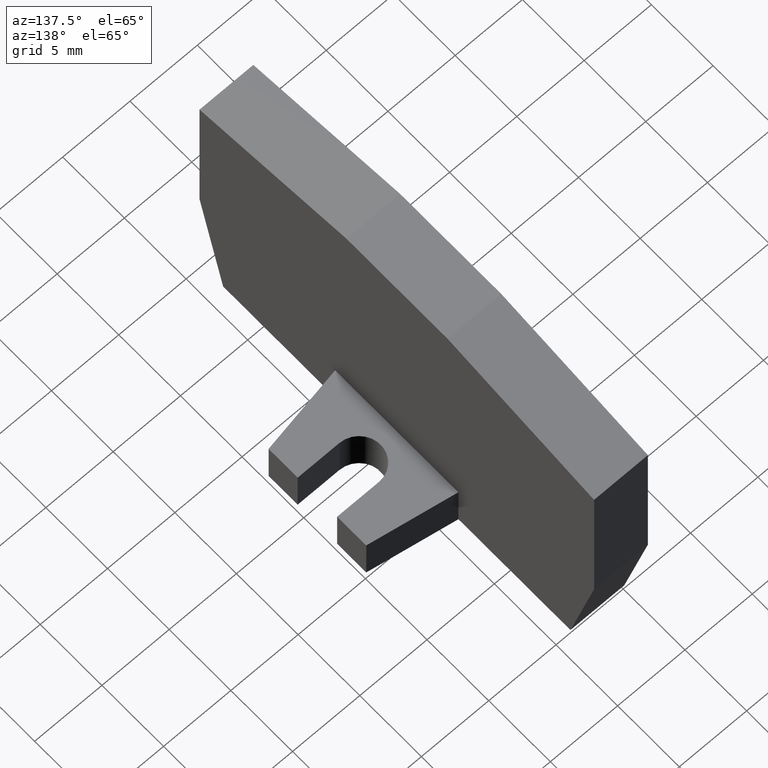
[diagram: clean part render]
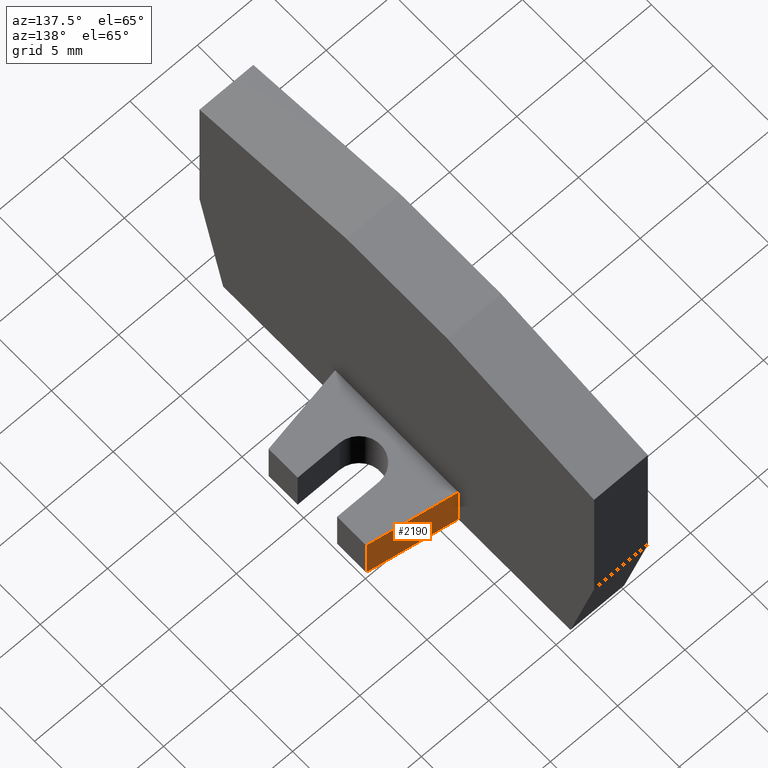
[diagram: same view with one face highlighted and labeled with its STEP entity id]
A machine part, auxiliary view. The second image highlights one B-rep face of the part: STEP entity #2190.
In plain terms, the highlighted planar face has unit normal (0.1736, 0.9848, 0).
Its self-contained STEP definition (entity closure, byte-faithful):
#1800=CARTESIAN_POINT('',(16.9335529569918,102.71779049095,
7.82775648862809));
#1810=DIRECTION('',(0.984807753012208,-0.,0.173648177666932));
#1820=DIRECTION('',(0.173648177666932,0.,-0.984807753012208));
#1830=AXIS2_PLACEMENT_3D('',#1800,#1810,#1820);
#1840=PLANE('',#1830);
#1850=CARTESIAN_POINT('',(15.8932237708119,122.790993259522,
13.7277564886281));
#1860=DIRECTION('',(0.,-1.,0.));
#1870=VECTOR('',#1860,1.);
#1880=LINE('',#1850,#1870);
#1890=CARTESIAN_POINT('',(15.8932237708119,106.21779049095,
13.7277564886281));
#1900=VERTEX_POINT('',#1890);
#1910=CARTESIAN_POINT('',(15.8932237708119,102.71779049095,
13.7277564886281));
#1920=VERTEX_POINT('',#1910);
#1930=EDGE_CURVE('',#1900,#1920,#1880,.T.);
#1940=ORIENTED_EDGE('',*,*,#1930,.T.);
#1950=CARTESIAN_POINT('',(17.6388608798257,106.21779049095,
3.8277564886281));
#1960=DIRECTION('',(0.173648177666932,0.,-0.984807753012208));
#1970=VECTOR('',#1960,1.);
#1980=LINE('',#1950,#1970);
#1990=CARTESIAN_POINT('',(16.9335529569918,106.21779049095,
7.8277564886281));
#2000=VERTEX_POINT('',#1990);
#2010=EDGE_CURVE('',#1900,#2000,#1980,.T.);
#2020=ORIENTED_EDGE('',*,*,#2010,.F.);
#2030=CARTESIAN_POINT('',(16.9335529569918,103.81779049095,
7.82775648862809));
#2040=DIRECTION('',(0.,1.,0.));
#2050=VECTOR('',#2040,1.);
#2060=LINE('',#2030,#2050);
#2070=CARTESIAN_POINT('',(16.9335529569918,102.71779049095,
7.8277564886281));
#2080=VERTEX_POINT('',#2070);
#2090=EDGE_CURVE('',#2080,#2000,#2060,.T.);
#2100=ORIENTED_EDGE('',*,*,#2090,.T.);
#2110=CARTESIAN_POINT('',(17.6388608798257,102.71779049095,
3.8277564886281));
#2120=DIRECTION('',(0.173648177666932,0.,-0.984807753012208));
#2130=VECTOR('',#2120,1.);
#2140=LINE('',#2110,#2130);
#2150=EDGE_CURVE('',#1920,#2080,#2140,.T.);
#2160=ORIENTED_EDGE('',*,*,#2150,.T.);
#2170=EDGE_LOOP('',(#2160,#2100,#2020,#1940));
#2180=FACE_OUTER_BOUND('',#2170,.T.);
#2190=ADVANCED_FACE('',(#2180),#1840,.T.);